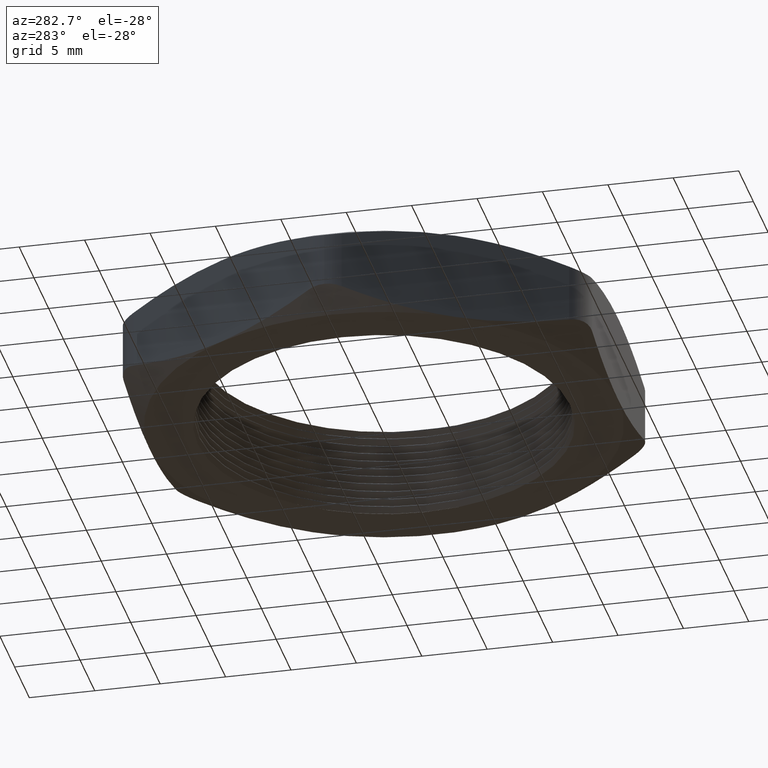
[diagram: clean part render]
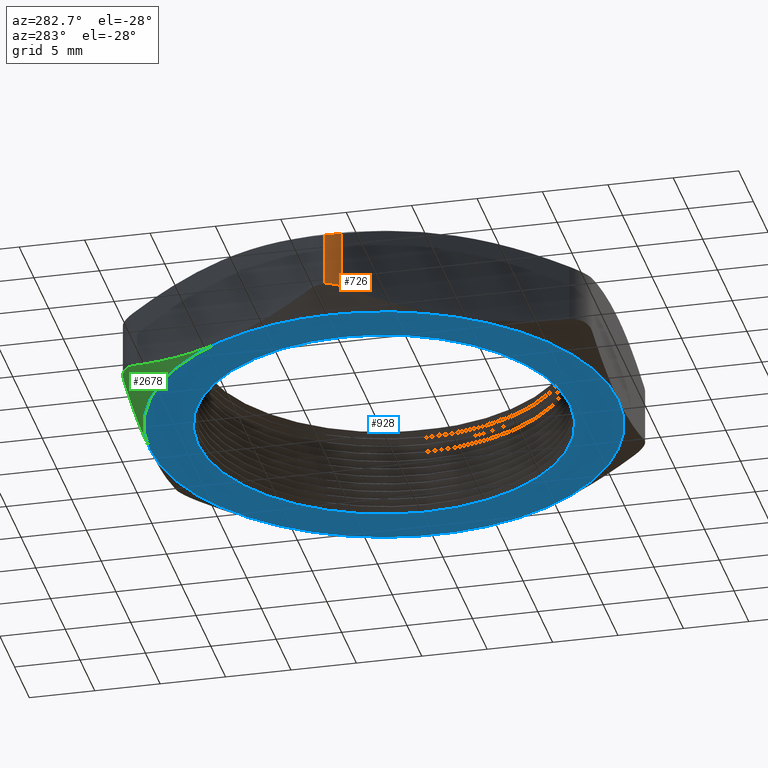
[diagram: same view with three faces highlighted in distinct colors, each labeled with its STEP entity id]
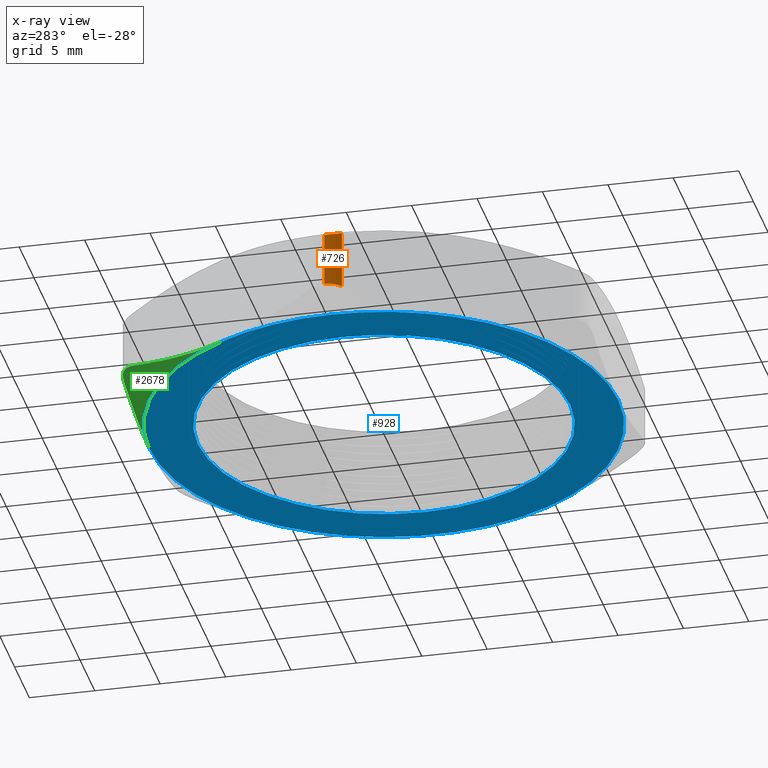
[diagram: x-ray of the same camera — body ghosted, the three highlighted faces saturated]
A machine part, auxiliary view with three faces highlighted in distinct colors.
The next image is the same camera in x-ray (body ghosted, the three faces saturated) — at least one of them is partly hidden behind the body in this view.
Their STEP definitions:

[orange] entity #726 — the highlighted cylindrical surface (edge-blend (fillet) strip) has radius 2.54 mm, axis along (0, 0, -1).
#723 = EDGE_CURVE ( 'NONE', #809, #725, #1311, .T. ) ;
#724 = ORIENTED_EDGE ( 'NONE', *, *, #723, .F. ) ;
#725 = VERTEX_POINT ( 'NONE', #1310 ) ;
#726 = ADVANCED_FACE ( 'NONE', ( #1309 ), #1308, .T. ) ;
#727 = EDGE_LOOP ( 'NONE', ( #724, #803, #798, #788 ) ) ;
#788 = ORIENTED_EDGE ( 'NONE', *, *, #789, .F. ) ;
#789 = EDGE_CURVE ( 'NONE', #725, #799, #1427, .T. ) ;
#797 = VERTEX_POINT ( 'NONE', #1464 ) ;
#798 = ORIENTED_EDGE ( 'NONE', *, *, #801, .F. ) ;
#799 = VERTEX_POINT ( 'NONE', #1463 ) ;
#800 = EDGE_CURVE ( 'NONE', #809, #797, #1462, .T. ) ;
#801 = EDGE_CURVE ( 'NONE', #799, #797, #1458, .T. ) ;
#803 = ORIENTED_EDGE ( 'NONE', *, *, #800, .T. ) ;
#809 = VERTEX_POINT ( 'NONE', #1498 ) ;
#1297 = DIRECTION ( 'NONE',  ( -1.000000000000000000, 0.0000000000000000000, 0.0000000000000000000 ) ) ;
#1298 = DIRECTION ( 'NONE',  ( 0.0000000000000000000, 0.0000000000000000000, -1.000000000000000000 ) ) ;
#1299 = CARTESIAN_POINT ( 'NONE',  ( -0.6985938257194470600, 1.622034746238156200E-016, 0.2700000000000000200 ) ) ;
#1300 = AXIS2_PLACEMENT_3D ( 'NONE', #1299, #1298, #1297 ) ;
#1302 = CARTESIAN_POINT ( 'NONE',  ( -0.7851963660978909000, -0.04999999999999983600, 0.2227804186536115300 ) ) ;
#1303 = CARTESIAN_POINT ( 'NONE',  ( -0.7894987027707577300, -0.04254813429132840000, 0.2205748961651107800 ) ) ;
#1304 = CARTESIAN_POINT ( 'NONE',  ( -0.7928799069883260000, -0.03443349883441912400, 0.2188570708074462900 ) ) ;
#1305 = CARTESIAN_POINT ( 'NONE',  ( -0.7974065441632323100, -0.01765156187907590900, 0.2165621820914009900 ) ) ;
#1306 = CARTESIAN_POINT ( 'NONE',  ( -0.7985938257194468100, -0.008775293849290388000, 0.2159635795263905900 ) ) ;
#1307 = CARTESIAN_POINT ( 'NONE',  ( -0.7985938257194470400, 1.622034747817353500E-016, 0.2159635795263906700 ) ) ;
#1308 = CYLINDRICAL_SURFACE ( 'NONE', #1300, 0.1000000000000000200 ) ;
#1309 = FACE_OUTER_BOUND ( 'NONE', #727, .T. ) ;
#1310 = CARTESIAN_POINT ( 'NONE',  ( -0.7851963660978909000, -0.04999999999999983600, 0.2227804186536115300 ) ) ;
#1311 = B_SPLINE_CURVE_WITH_KNOTS ( 'NONE', 3,
 ( #1307, #1306, #1305, #1304, #1303, #1302 ),
 .UNSPECIFIED., .F., .F.,
 ( 4, 2, 4 ),
 ( 0.001339518261941906400, 0.002007135672864974800, 0.002674753083788043500 ),
 .UNSPECIFIED. ) ;
#1424 = DIRECTION ( 'NONE',  ( 0.0000000000000000000, 0.0000000000000000000, -1.000000000000000000 ) ) ;
#1425 = VECTOR ( 'NONE', #1424, 39.37007874015748100 ) ;
#1426 = CARTESIAN_POINT ( 'NONE',  ( -0.7851963660978909000, -0.04999999999999981500, 0.2700000000000000200 ) ) ;
#1427 = LINE ( 'NONE', #1426, #1425 ) ;
#1456 = CARTESIAN_POINT ( 'NONE',  ( -0.7895112479769245100, -0.04252640535685503500, 0.04943153492953105500 ) ) ;
#1457 = CARTESIAN_POINT ( 'NONE',  ( -0.7851963660978909000, -0.04999999999999987100, 0.04721958134638849100 ) ) ;
#1458 = B_SPLINE_CURVE_WITH_KNOTS ( 'NONE', 3,
 ( #1457, #1456, #1514, #1513, #1512, #1511 ),
 .UNSPECIFIED., .F., .F.,
 ( 4, 2, 4 ),
 ( 1.105673606836655400E-018, 0.0006697591309704110800, 0.001339518261940821100 ),
 .UNSPECIFIED. ) ;
#1459 = DIRECTION ( 'NONE',  ( 0.0000000000000000000, 0.0000000000000000000, -1.000000000000000000 ) ) ;
#1460 = VECTOR ( 'NONE', #1459, 39.37007874015748100 ) ;
#1461 = CARTESIAN_POINT ( 'NONE',  ( -0.7985938257194470400, 1.622034746238156200E-016, 0.2700000000000000200 ) ) ;
#1462 = LINE ( 'NONE', #1461, #1460 ) ;
#1463 = CARTESIAN_POINT ( 'NONE',  ( -0.7851963660978909000, -0.04999999999999987100, 0.04721958134638849100 ) ) ;
#1464 = CARTESIAN_POINT ( 'NONE',  ( -0.7985938257194470400, -1.579197042449818800E-025, 0.05403642047360937600 ) ) ;
#1498 = CARTESIAN_POINT ( 'NONE',  ( -0.7985938257194470400, 1.622034747817353500E-016, 0.2159635795263906700 ) ) ;
#1511 = CARTESIAN_POINT ( 'NONE',  ( -0.7985938257194470400, -1.579197042449818800E-025, 0.05403642047360937600 ) ) ;
#1512 = CARTESIAN_POINT ( 'NONE',  ( -0.7985938257194470400, -0.008803445036553040100, 0.05403642047360938900 ) ) ;
#1513 = CARTESIAN_POINT ( 'NONE',  ( -0.7974185427648957700, -0.01762551082223185900, 0.05344391916463363300 ) ) ;
#1514 = CARTESIAN_POINT ( 'NONE',  ( -0.7928392944074448300, -0.03456551695891835900, 0.05112232126987595300 ) ) ;

[blue] entity #928 — the highlighted planar face has unit normal (0, 0, -1).
#792 = EDGE_CURVE ( 'NONE', #793, #794, #1475, .T. ) ;
#793 = VERTEX_POINT ( 'NONE', #1470 ) ;
#794 = VERTEX_POINT ( 'NONE', #1469 ) ;
#815 = ORIENTED_EDGE ( 'NONE', *, *, #816, .T. ) ;
#816 = EDGE_CURVE ( 'NONE', #925, #817, #1491, .T. ) ;
#817 = VERTEX_POINT ( 'NONE', #1492 ) ;
#818 = ORIENTED_EDGE ( 'NONE', *, *, #819, .T. ) ;
#819 = EDGE_CURVE ( 'NONE', #817, #1064, #1486, .T. ) ;
#820 = EDGE_LOOP ( 'NONE', ( #821, #823 ) ) ;
#821 = ORIENTED_EDGE ( 'NONE', *, *, #822, .T. ) ;
#822 = EDGE_CURVE ( 'NONE', #1098, #979, #1545, .T. ) ;
#823 = ORIENTED_EDGE ( 'NONE', *, *, #978, .T. ) ;
#922 = VERTEX_POINT ( 'NONE', #1720 ) ;
#923 = ORIENTED_EDGE ( 'NONE', *, *, #1123, .T. ) ;
#924 = VERTEX_POINT ( 'NONE', #1719 ) ;
#925 = VERTEX_POINT ( 'NONE', #1718 ) ;
#928 = ADVANCED_FACE ( 'NONE', ( #1712, #1711 ), #1710, .T. ) ;
#963 = EDGE_CURVE ( 'NONE', #924, #925, #1813, .T. ) ;
#978 = EDGE_CURVE ( 'NONE', #979, #1098, #1854, .T. ) ;
#979 = VERTEX_POINT ( 'NONE', #1849 ) ;
#1015 = EDGE_LOOP ( 'NONE', ( #1016, #1103, #1104, #923, #1070, #815, #818 ) ) ;
#1016 = ORIENTED_EDGE ( 'NONE', *, *, #1063, .T. ) ;
#1063 = EDGE_CURVE ( 'NONE', #1064, #793, #1996, .T. ) ;
#1064 = VERTEX_POINT ( 'NONE', #1987 ) ;
#1070 = ORIENTED_EDGE ( 'NONE', *, *, #963, .T. ) ;
#1098 = VERTEX_POINT ( 'NONE', #2044 ) ;
#1103 = ORIENTED_EDGE ( 'NONE', *, *, #792, .T. ) ;
#1104 = ORIENTED_EDGE ( 'NONE', *, *, #1105, .T. ) ;
#1105 = EDGE_CURVE ( 'NONE', #794, #922, #2092, .T. ) ;
#1123 = EDGE_CURVE ( 'NONE', #922, #924, #1609, .T. ) ;
#1469 = CARTESIAN_POINT ( 'NONE',  ( -0.6105479096680291900, 0.3524999999999999800, 0.0000000000000000000 ) ) ;
#1470 = CARTESIAN_POINT ( 'NONE',  ( -0.7049999999999998500, 0.0000000000000000000, 0.0000000000000000000 ) ) ;
#1471 = DIRECTION ( 'NONE',  ( -1.000000000000000000, 0.0000000000000000000, 0.0000000000000000000 ) ) ;
#1472 = DIRECTION ( 'NONE',  ( 0.0000000000000000000, 0.0000000000000000000, -1.000000000000000000 ) ) ;
#1473 = CARTESIAN_POINT ( 'NONE',  ( 0.0000000000000000000, 0.0000000000000000000, 0.0000000000000000000 ) ) ;
#1474 = AXIS2_PLACEMENT_3D ( 'NONE', #1473, #1472, #1471 ) ;
#1475 = CIRCLE ( 'NONE', #1474, 0.7049999999999998500 ) ;
#1482 = DIRECTION ( 'NONE',  ( -1.000000000000000000, 0.0000000000000000000, 0.0000000000000000000 ) ) ;
#1483 = DIRECTION ( 'NONE',  ( 0.0000000000000000000, 0.0000000000000000000, -1.000000000000000000 ) ) ;
#1484 = CARTESIAN_POINT ( 'NONE',  ( 0.0000000000000000000, 0.0000000000000000000, 0.0000000000000000000 ) ) ;
#1485 = AXIS2_PLACEMENT_3D ( 'NONE', #1484, #1483, #1482 ) ;
#1486 = CIRCLE ( 'NONE', #1485, 0.7049999999999998500 ) ;
#1487 = DIRECTION ( 'NONE',  ( -1.000000000000000000, 0.0000000000000000000, 0.0000000000000000000 ) ) ;
#1488 = DIRECTION ( 'NONE',  ( 0.0000000000000000000, 0.0000000000000000000, -1.000000000000000000 ) ) ;
#1489 = CARTESIAN_POINT ( 'NONE',  ( 0.0000000000000000000, 0.0000000000000000000, 0.0000000000000000000 ) ) ;
#1490 = AXIS2_PLACEMENT_3D ( 'NONE', #1489, #1488, #1487 ) ;
#1491 = CIRCLE ( 'NONE', #1490, 0.7049999999999998500 ) ;
#1492 = CARTESIAN_POINT ( 'NONE',  ( 1.182924880895400800E-016, -0.7049999999999999600, 0.0000000000000000000 ) ) ;
#1541 = DIRECTION ( 'NONE',  ( -1.000000000000000000, 0.0000000000000000000, 0.0000000000000000000 ) ) ;
#1542 = DIRECTION ( 'NONE',  ( 0.0000000000000000000, 0.0000000000000000000, 1.000000000000000000 ) ) ;
#1543 = CARTESIAN_POINT ( 'NONE',  ( 0.0000000000000000000, 0.0000000000000000000, 0.0000000000000000000 ) ) ;
#1544 = AXIS2_PLACEMENT_3D ( 'NONE', #1543, #1542, #1541 ) ;
#1545 = CIRCLE ( 'NONE', #1544, 0.5603589838486221500 ) ;
#1609 = CIRCLE ( 'NONE', #1864, 0.7049999999999998500 ) ;
#1706 = DIRECTION ( 'NONE',  ( -1.000000000000000000, 0.0000000000000000000, 0.0000000000000000000 ) ) ;
#1707 = DIRECTION ( 'NONE',  ( 0.0000000000000000000, 0.0000000000000000000, -1.000000000000000000 ) ) ;
#1708 = CARTESIAN_POINT ( 'NONE',  ( -0.4070319397786861200, 0.7049999999999999600, 0.0000000000000000000 ) ) ;
#1709 = AXIS2_PLACEMENT_3D ( 'NONE', #1708, #1707, #1706 ) ;
#1710 = PLANE ( 'NONE',  #1709 ) ;
#1711 = FACE_BOUND ( 'NONE', #820, .T. ) ;
#1712 = FACE_OUTER_BOUND ( 'NONE', #1015, .T. ) ;
#1718 = CARTESIAN_POINT ( 'NONE',  ( 0.6105479096680291900, -0.3524999999999999800, 0.0000000000000000000 ) ) ;
#1719 = CARTESIAN_POINT ( 'NONE',  ( 0.6105479096680293000, 0.3524999999999998700, 0.0000000000000000000 ) ) ;
#1720 = CARTESIAN_POINT ( 'NONE',  ( 0.0000000000000000000, 0.7049999999999999600, 0.0000000000000000000 ) ) ;
#1809 = DIRECTION ( 'NONE',  ( -1.000000000000000000, 0.0000000000000000000, 0.0000000000000000000 ) ) ;
#1810 = DIRECTION ( 'NONE',  ( 0.0000000000000000000, 0.0000000000000000000, -1.000000000000000000 ) ) ;
#1811 = CARTESIAN_POINT ( 'NONE',  ( 0.0000000000000000000, 0.0000000000000000000, 0.0000000000000000000 ) ) ;
#1812 = AXIS2_PLACEMENT_3D ( 'NONE', #1811, #1810, #1809 ) ;
#1813 = CIRCLE ( 'NONE', #1812, 0.7049999999999998500 ) ;
#1849 = CARTESIAN_POINT ( 'NONE',  ( -0.5603589838486221500, 6.952068727267033500E-017, 0.0000000000000000000 ) ) ;
#1850 = DIRECTION ( 'NONE',  ( -1.000000000000000000, 0.0000000000000000000, 0.0000000000000000000 ) ) ;
#1851 = DIRECTION ( 'NONE',  ( 0.0000000000000000000, 0.0000000000000000000, 1.000000000000000000 ) ) ;
#1852 = CARTESIAN_POINT ( 'NONE',  ( 0.0000000000000000000, 0.0000000000000000000, 0.0000000000000000000 ) ) ;
#1853 = AXIS2_PLACEMENT_3D ( 'NONE', #1852, #1851, #1850 ) ;
#1854 = CIRCLE ( 'NONE', #1853, 0.5603589838486221500 ) ;
#1864 = AXIS2_PLACEMENT_3D ( 'NONE', #2106, #2164, #2163 ) ;
#1987 = CARTESIAN_POINT ( 'NONE',  ( -0.6105479096680294100, -0.3524999999999996500, 0.0000000000000000000 ) ) ;
#1988 = DIRECTION ( 'NONE',  ( -1.000000000000000000, 0.0000000000000000000, 0.0000000000000000000 ) ) ;
#1989 = DIRECTION ( 'NONE',  ( 0.0000000000000000000, 0.0000000000000000000, -1.000000000000000000 ) ) ;
#1990 = CARTESIAN_POINT ( 'NONE',  ( 0.0000000000000000000, 0.0000000000000000000, 0.0000000000000000000 ) ) ;
#1991 = AXIS2_PLACEMENT_3D ( 'NONE', #1990, #1989, #1988 ) ;
#1996 = CIRCLE ( 'NONE', #1991, 0.7049999999999998500 ) ;
#2044 = CARTESIAN_POINT ( 'NONE',  ( 0.5603589838486221500, 0.0000000000000000000, 0.0000000000000000000 ) ) ;
#2088 = DIRECTION ( 'NONE',  ( -1.000000000000000000, 0.0000000000000000000, 0.0000000000000000000 ) ) ;
#2089 = DIRECTION ( 'NONE',  ( 0.0000000000000000000, 0.0000000000000000000, -1.000000000000000000 ) ) ;
#2090 = CARTESIAN_POINT ( 'NONE',  ( 0.0000000000000000000, 0.0000000000000000000, 0.0000000000000000000 ) ) ;
#2091 = AXIS2_PLACEMENT_3D ( 'NONE', #2090, #2089, #2088 ) ;
#2092 = CIRCLE ( 'NONE', #2091, 0.7049999999999999600 ) ;
#2106 = CARTESIAN_POINT ( 'NONE',  ( 0.0000000000000000000, 0.0000000000000000000, 0.0000000000000000000 ) ) ;
#2163 = DIRECTION ( 'NONE',  ( -1.000000000000000000, 0.0000000000000000000, 0.0000000000000000000 ) ) ;
#2164 = DIRECTION ( 'NONE',  ( 0.0000000000000000000, 0.0000000000000000000, -1.000000000000000000 ) ) ;

[green] entity #2678 — the highlighted conical surface has half-angle 60 deg.
#153 = EDGE_CURVE ( 'NONE', #154, #922, #456, .T. ) ;
#154 = VERTEX_POINT ( 'NONE', #455 ) ;
#446 = CARTESIAN_POINT ( 'NONE',  ( 0.0000000000000000000, 0.7049999999999999600, 0.0000000000000000000 ) ) ;
#447 = CARTESIAN_POINT ( 'NONE',  ( -0.05893831461760886500, 0.7050000000000001800, 5.335640612625515100E-019 ) ) ;
#448 = CARTESIAN_POINT ( 'NONE',  ( -0.1174838883761724800, 0.7050000000000002900, 0.004322836374041265900 ) ) ;
#449 = CARTESIAN_POINT ( 'NONE',  ( -0.2047840928673342100, 0.7049999999999999600, 0.01651035349800888600 ) ) ;
#450 = CARTESIAN_POINT ( 'NONE',  ( -0.2337987739647667000, 0.7050000000000001800, 0.02151270110816355300 ) ) ;
#451 = CARTESIAN_POINT ( 'NONE',  ( -0.2916768979535105900, 0.7049999999999999600, 0.03318205128735259700 ) ) ;
#452 = CARTESIAN_POINT ( 'NONE',  ( -0.3206043649118415800, 0.7050000000000001800, 0.03986519876743593200 ) ) ;
#453 = CARTESIAN_POINT ( 'NONE',  ( -0.3492969128597262500, 0.7049999999999999600, 0.04721958134638913600 ) ) ;
#455 = CARTESIAN_POINT ( 'NONE',  ( -0.3492969128597262500, 0.7049999999999999600, 0.04721958134638913600 ) ) ;
#456 = B_SPLINE_CURVE_WITH_KNOTS ( 'NONE', 3,
 ( #453, #452, #451, #450, #449, #448, #447, #446 ),
 .UNSPECIFIED., .F., .F.,
 ( 4, 2, 2, 4 ),
 ( 0.02077380565168190200, 0.02301284264967993000, 0.02525187964767795800, 0.02972995364367401300 ),
 .UNSPECIFIED. ) ;
#794 = VERTEX_POINT ( 'NONE', #1469 ) ;
#892 = VERTEX_POINT ( 'NONE', #1649 ) ;
#922 = VERTEX_POINT ( 'NONE', #1720 ) ;
#1105 = EDGE_CURVE ( 'NONE', #794, #922, #2092, .T. ) ;
#1115 = EDGE_CURVE ( 'NONE', #794, #892, #2121, .T. ) ;
#1469 = CARTESIAN_POINT ( 'NONE',  ( -0.6105479096680291900, 0.3524999999999999800, 0.0000000000000000000 ) ) ;
#1649 = CARTESIAN_POINT ( 'NONE',  ( -0.4358994532381675900, 0.6549999999999998000, 0.04721958134638849800 ) ) ;
#1720 = CARTESIAN_POINT ( 'NONE',  ( 0.0000000000000000000, 0.7049999999999999600, 0.0000000000000000000 ) ) ;
#2088 = DIRECTION ( 'NONE',  ( -1.000000000000000000, 0.0000000000000000000, 0.0000000000000000000 ) ) ;
#2089 = DIRECTION ( 'NONE',  ( 0.0000000000000000000, 0.0000000000000000000, -1.000000000000000000 ) ) ;
#2090 = CARTESIAN_POINT ( 'NONE',  ( 0.0000000000000000000, 0.0000000000000000000, 0.0000000000000000000 ) ) ;
#2091 = AXIS2_PLACEMENT_3D ( 'NONE', #2090, #2089, #2088 ) ;
#2092 = CIRCLE ( 'NONE', #2091, 0.7049999999999999600 ) ;
#2111 = CARTESIAN_POINT ( 'NONE',  ( -0.4358994532381675900, 0.6549999999999998000, 0.04721958134638849800 ) ) ;
#2112 = CARTESIAN_POINT ( 'NONE',  ( -0.4644557774193918700, 0.6055389956407117900, 0.03258064907318709200 ) ) ;
#2113 = CARTESIAN_POINT ( 'NONE',  ( -0.4932411438816933200, 0.5556812784135166700, 0.02070721915129442400 ) ) ;
#2114 = CARTESIAN_POINT ( 'NONE',  ( -0.5368810850272546200, 0.4800946831100882400, 0.008474044122453948000 ) ) ;
#2115 = CARTESIAN_POINT ( 'NONE',  ( -0.5515047377463946400, 0.4547657736082950700, 0.005326100994861183300 ) ) ;
#2116 = CARTESIAN_POINT ( 'NONE',  ( -0.5809224072977446900, 0.4038128753050853600, 0.001087225144293930800 ) ) ;
#2117 = CARTESIAN_POINT ( 'NONE',  ( -0.5957721708270429200, 0.3780923303919570000, 0.0000000000000000000 ) ) ;
#2118 = CARTESIAN_POINT ( 'NONE',  ( -0.6105479096680291900, 0.3524999999999999800, 0.0000000000000000000 ) ) ;
#2121 = B_SPLINE_CURVE_WITH_KNOTS ( 'NONE', 3,
 ( #2118, #2117, #2116, #2115, #2114, #2113, #2112, #2111 ),
 .UNSPECIFIED., .F., .F.,
 ( 4, 2, 2, 4 ),
 ( 0.01046121909833013600, 0.01269016365193540400, 0.01491910820554067200, 0.01937699731275120700 ),
 .UNSPECIFIED. ) ;
#2379 = CONICAL_SURFACE ( 'NONE', #2380, 0.7049999999999999600, 1.047197551196600100 ) ;
#2380 = AXIS2_PLACEMENT_3D ( 'NONE', #2385, #2436, #2435 ) ;
#2381 = FACE_OUTER_BOUND ( 'NONE', #2686, .T. ) ;
#2385 = CARTESIAN_POINT ( 'NONE',  ( 0.0000000000000000000, 0.0000000000000000000, 0.0000000000000000000 ) ) ;
#2411 = CARTESIAN_POINT ( 'NONE',  ( -0.4069776264820400600, 0.6871594667174537600, 0.05403265385335942500 ) ) ;
#2412 = CARTESIAN_POINT ( 'NONE',  ( -0.4140161126246341100, 0.6817342817714965300, 0.05343821454819568100 ) ) ;
#2413 = CARTESIAN_POINT ( 'NONE',  ( -0.4263709331305963200, 0.6693142302797985300, 0.05111688178327802900 ) ) ;
#2414 = CARTESIAN_POINT ( 'NONE',  ( -0.4315914703087657700, 0.6624616453118630200, 0.04942799829590208100 ) ) ;
#2415 = CARTESIAN_POINT ( 'NONE',  ( -0.4358994532381675900, 0.6549999999999998000, 0.04721958134638849800 ) ) ;
#2418 = B_SPLINE_CURVE_WITH_KNOTS ( 'NONE', 3,
 ( #2415, #2414, #2413, #2412, #2411, #2469, #2468, #2467, #2466, #2465 ),
 .UNSPECIFIED., .F., .F.,
 ( 4, 2, 2, 2, 4 ),
 ( 4.982613841084487600E-018, 0.0006686882709469545100, 0.001337376541893904000, 0.002006064812840853300, 0.002674753083787802900 ),
 .UNSPECIFIED. ) ;
#2435 = DIRECTION ( 'NONE',  ( -1.000000000000000000, 0.0000000000000000000, 0.0000000000000000000 ) ) ;
#2436 = DIRECTION ( 'NONE',  ( 0.0000000000000000000, 0.0000000000000000000, 1.000000000000000000 ) ) ;
#2465 = CARTESIAN_POINT ( 'NONE',  ( -0.3492969128597262500, 0.7049999999999999600, 0.04721958134638913600 ) ) ;
#2466 = CARTESIAN_POINT ( 'NONE',  ( -0.3579153881233674800, 0.7050000000000002900, 0.04942864149856499700 ) ) ;
#2467 = CARTESIAN_POINT ( 'NONE',  ( -0.3666474123574541800, 0.7038672647533991100, 0.05114838346621054100 ) ) ;
#2468 = CARTESIAN_POINT ( 'NONE',  ( -0.3834696504457434900, 0.6993822010684029900, 0.05344339811713440900 ) ) ;
#2469 = CARTESIAN_POINT ( 'NONE',  ( -0.3917624365260931600, 0.6959611015490526600, 0.05404015107375006300 ) ) ;
#2673 = ORIENTED_EDGE ( 'NONE', *, *, #1105, .F. ) ;
#2674 = ORIENTED_EDGE ( 'NONE', *, *, #153, .T. ) ;
#2678 = ADVANCED_FACE ( 'NONE', ( #2381 ), #2379, .T. ) ;
#2682 = EDGE_CURVE ( 'NONE', #892, #154, #2418, .T. ) ;
#2685 = ORIENTED_EDGE ( 'NONE', *, *, #2682, .T. ) ;
#2686 = EDGE_LOOP ( 'NONE', ( #2687, #2685, #2674, #2673 ) ) ;
#2687 = ORIENTED_EDGE ( 'NONE', *, *, #1115, .T. ) ;